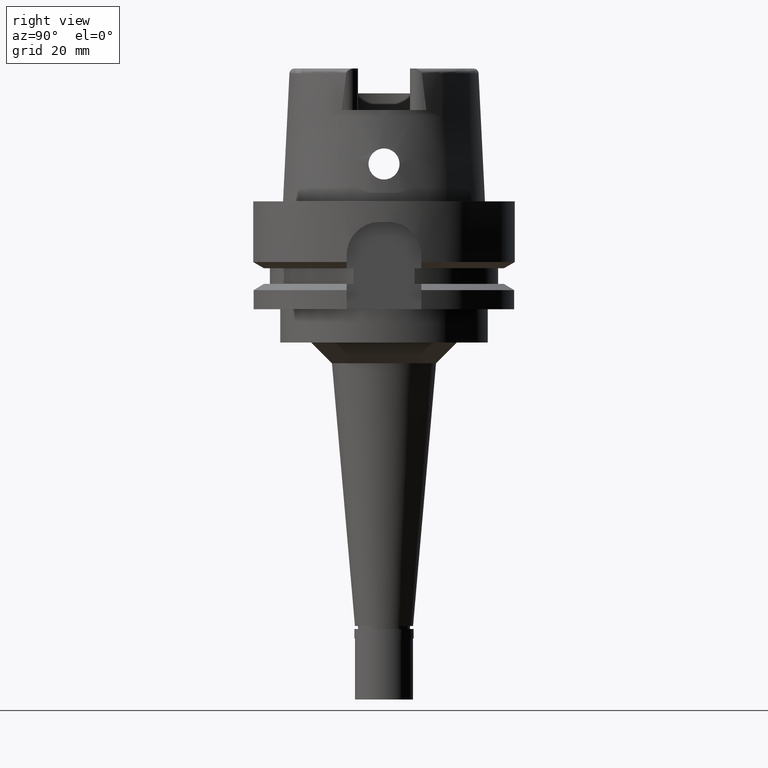
[diagram: clean part render]
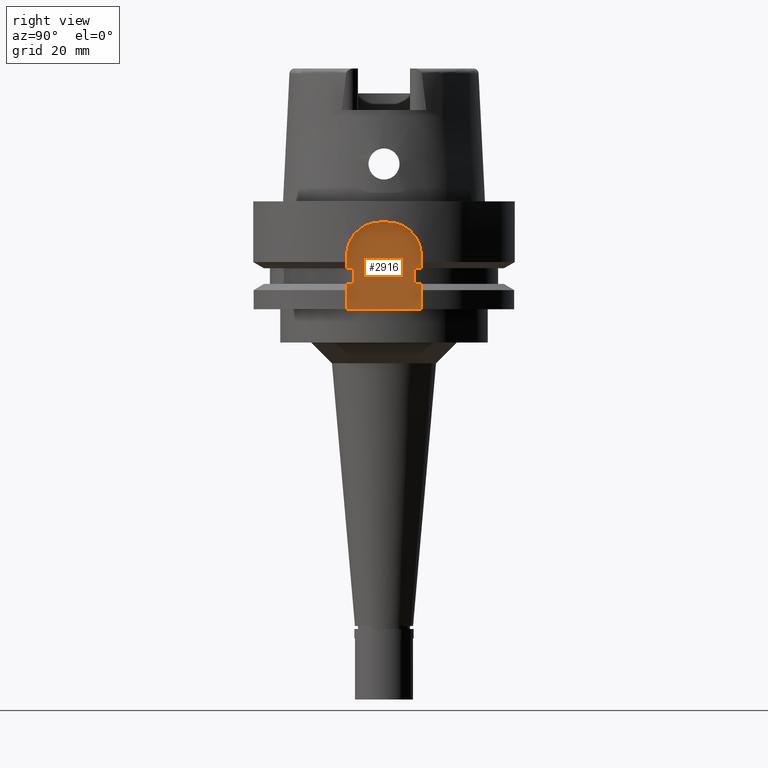
[diagram: same view with one face highlighted and labeled with its STEP entity id]
A machine part, right view. The second image highlights one B-rep face of the part: STEP entity #2916.
In plain terms, the highlighted planar face has unit normal (1, 0, 0).
Its self-contained STEP definition (entity closure, byte-faithful):
#2 = ORIENTED_EDGE ( 'NONE', *, *, #636, .F. ) ;
#70 = VERTEX_POINT ( 'NONE', #728 ) ;
#115 = DIRECTION ( 'NONE',  ( 0.0000000000000000000, 0.0000000000000000000, 1.000000000000000000 ) ) ;
#196 = CARTESIAN_POINT ( 'NONE',  ( 26.50000000000000000, -7.348469228349999938, -19.87500000000000000 ) ) ;
#206 = VECTOR ( 'NONE', #5142, 1000.000000000000000 ) ;
#310 = CARTESIAN_POINT ( 'NONE',  ( 26.50000000000000000, -9.000000000000000000, -26.00000000000000000 ) ) ;
#364 = EDGE_CURVE ( 'NONE', #836, #711, #1304, .T. ) ;
#374 = LINE ( 'NONE', #2117, #1582 ) ;
#375 = LINE ( 'NONE', #4096, #4568 ) ;
#405 = CARTESIAN_POINT ( 'NONE',  ( 26.50000000000000000, -9.000000000000000000, -16.12500000000000000 ) ) ;
#412 = DIRECTION ( 'NONE',  ( 0.0000000000000000000, 1.000000000000000000, 0.0000000000000000000 ) ) ;
#465 = VECTOR ( 'NONE', #4441, 1000.000000000000000 ) ;
#507 = ORIENTED_EDGE ( 'NONE', *, *, #3588, .T. ) ;
#586 = LINE ( 'NONE', #4704, #4815 ) ;
#636 = EDGE_CURVE ( 'NONE', #780, #827, #375, .T. ) ;
#655 = VERTEX_POINT ( 'NONE', #2897 ) ;
#665 = LINE ( 'NONE', #1547, #2389 ) ;
#711 = VERTEX_POINT ( 'NONE', #945 ) ;
#728 = CARTESIAN_POINT ( 'NONE',  ( 26.50000000000000000, 9.000000000000000000, -19.87500000000000000 ) ) ;
#729 = CARTESIAN_POINT ( 'NONE',  ( 26.50000000000000000, 7.348469228349999938, -16.12500000000000000 ) ) ;
#780 = VERTEX_POINT ( 'NONE', #1961 ) ;
#801 = CIRCLE ( 'NONE', #1495, 8.000000000000000000 ) ;
#804 = EDGE_CURVE ( 'NONE', #3467, #3299, #2813, .T. ) ;
#827 = VERTEX_POINT ( 'NONE', #4555 ) ;
#836 = VERTEX_POINT ( 'NONE', #405 ) ;
#854 = CARTESIAN_POINT ( 'NONE',  ( 26.50000000000000000, 9.000000000000000000, -13.00000000000000000 ) ) ;
#861 = ORIENTED_EDGE ( 'NONE', *, *, #3628, .F. ) ;
#945 = CARTESIAN_POINT ( 'NONE',  ( 26.50000000000000000, -7.348469228349999938, -16.12500000000000000 ) ) ;
#1068 = ORIENTED_EDGE ( 'NONE', *, *, #364, .T. ) ;
#1148 = VECTOR ( 'NONE', #1990, 1000.000000000000000 ) ;
#1179 = EDGE_CURVE ( 'NONE', #70, #655, #665, .T. ) ;
#1198 = DIRECTION ( 'NONE',  ( 0.0000000000000000000, 0.0000000000000000000, 1.000000000000000000 ) ) ;
#1239 = EDGE_CURVE ( 'NONE', #1364, #3299, #3629, .T. ) ;
#1268 = VERTEX_POINT ( 'NONE', #310 ) ;
#1301 = CARTESIAN_POINT ( 'NONE',  ( 26.50000000000000000, -9.000000000000000000, -13.00000000000000000 ) ) ;
#1304 = LINE ( 'NONE', #3789, #1321 ) ;
#1321 = VECTOR ( 'NONE', #1722, 1000.000000000000000 ) ;
#1364 = VERTEX_POINT ( 'NONE', #854 ) ;
#1369 = DIRECTION ( 'NONE',  ( 0.0000000000000000000, 0.0000000000000000000, -1.000000000000000000 ) ) ;
#1421 = CARTESIAN_POINT ( 'NONE',  ( 26.50000000000000000, -9.000000000000000000, -26.00000000000000000 ) ) ;
#1462 = ORIENTED_EDGE ( 'NONE', *, *, #1239, .F. ) ;
#1495 = AXIS2_PLACEMENT_3D ( 'NONE', #5124, #5147, #3488 ) ;
#1513 = CARTESIAN_POINT ( 'NONE',  ( 26.50000000000000000, 9.000000000000000000, -13.00000000000000000 ) ) ;
#1547 = CARTESIAN_POINT ( 'NONE',  ( 26.50000000000000000, 9.000000000000000000, -19.87500000000000000 ) ) ;
#1551 = EDGE_CURVE ( 'NONE', #1268, #5326, #2654, .T. ) ;
#1565 = CARTESIAN_POINT ( 'NONE',  ( 26.50000000000000000, 0.0000000000000000000, 0.0000000000000000000 ) ) ;
#1582 = VECTOR ( 'NONE', #1198, 1000.000000000000000 ) ;
#1603 = VECTOR ( 'NONE', #4475, 1000.000000000000000 ) ;
#1617 = FACE_OUTER_BOUND ( 'NONE', #2798, .T. ) ;
#1631 = VERTEX_POINT ( 'NONE', #4867 ) ;
#1638 = DIRECTION ( 'NONE',  ( 0.0000000000000000000, 1.000000000000000000, 0.0000000000000000000 ) ) ;
#1662 = AXIS2_PLACEMENT_3D ( 'NONE', #4612, #5047, #2870 ) ;
#1685 = CARTESIAN_POINT ( 'NONE',  ( 26.50000000000000000, -9.000000000000000000, -26.00000000000000000 ) ) ;
#1722 = DIRECTION ( 'NONE',  ( -2.366280491871000116E-14, 1.000000000000000000, 0.0000000000000000000 ) ) ;
#1790 = AXIS2_PLACEMENT_3D ( 'NONE', #1565, #2741, #2828 ) ;
#1842 = EDGE_CURVE ( 'NONE', #1631, #70, #3020, .T. ) ;
#1961 = CARTESIAN_POINT ( 'NONE',  ( 26.50000000000000000, -1.000000000001000089, -5.000000000000000000 ) ) ;
#1990 = DIRECTION ( 'NONE',  ( -2.366280491871000116E-14, 1.000000000000000000, 0.0000000000000000000 ) ) ;
#2028 = DIRECTION ( 'NONE',  ( 0.0000000000000000000, 0.0000000000000000000, -1.000000000000000000 ) ) ;
#2057 = ORIENTED_EDGE ( 'NONE', *, *, #4276, .F. ) ;
#2117 = CARTESIAN_POINT ( 'NONE',  ( 26.50000000000000000, -9.000000000000000000, -16.12500000000000000 ) ) ;
#2190 = DIRECTION ( 'NONE',  ( 2.366280491871000116E-14, 1.000000000000000000, 0.0000000000000000000 ) ) ;
#2296 = CARTESIAN_POINT ( 'NONE',  ( 26.50000000000000000, 9.000000000000000000, -16.12500000000000000 ) ) ;
#2389 = VECTOR ( 'NONE', #2028, 1000.000000000000000 ) ;
#2443 = ORIENTED_EDGE ( 'NONE', *, *, #1551, .F. ) ;
#2548 = CARTESIAN_POINT ( 'NONE',  ( 26.50000000000000000, 7.348469228349999938, -16.12500000000000000 ) ) ;
#2606 = CARTESIAN_POINT ( 'NONE',  ( 26.50000000000000000, 7.348469228349999938, -19.87500000000000000 ) ) ;
#2654 = LINE ( 'NONE', #1421, #206 ) ;
#2667 = ORIENTED_EDGE ( 'NONE', *, *, #1842, .F. ) ;
#2741 = DIRECTION ( 'NONE',  ( 1.000000000000000000, 0.0000000000000000000, 0.0000000000000000000 ) ) ;
#2798 = EDGE_LOOP ( 'NONE', ( #4423, #2667, #5211, #4658, #1462, #861, #2, #2057, #3765, #1068, #507, #3999, #2443, #5119 ) ) ;
#2813 = LINE ( 'NONE', #729, #1603 ) ;
#2828 = DIRECTION ( 'NONE',  ( 0.0000000000000000000, 1.000000000000000000, 0.0000000000000000000 ) ) ;
#2870 = DIRECTION ( 'NONE',  ( 0.0000000000000000000, -1.000000000000000000, -1.069023342070707372E-13 ) ) ;
#2897 = CARTESIAN_POINT ( 'NONE',  ( 26.50000000000000000, 9.000000000000000000, -26.00000000000000000 ) ) ;
#2916 = ADVANCED_FACE ( 'NONE', ( #1617 ), #5316, .T. ) ;
#3020 = LINE ( 'NONE', #2606, #4927 ) ;
#3076 = VECTOR ( 'NONE', #115, 1000.000000000000000 ) ;
#3271 = LINE ( 'NONE', #4908, #3076 ) ;
#3299 = VERTEX_POINT ( 'NONE', #2296 ) ;
#3395 = CARTESIAN_POINT ( 'NONE',  ( 26.50000000000000000, -9.000000000000000000, -19.87500000000000000 ) ) ;
#3467 = VERTEX_POINT ( 'NONE', #2548 ) ;
#3488 = DIRECTION ( 'NONE',  ( 0.0000000000000000000, -3.146896805639176620E-14, 1.000000000000000000 ) ) ;
#3588 = EDGE_CURVE ( 'NONE', #711, #4944, #586, .T. ) ;
#3628 = EDGE_CURVE ( 'NONE', #827, #1364, #801, .T. ) ;
#3629 = LINE ( 'NONE', #1513, #465 ) ;
#3682 = VERTEX_POINT ( 'NONE', #1301 ) ;
#3755 = LINE ( 'NONE', #1685, #5251 ) ;
#3765 = ORIENTED_EDGE ( 'NONE', *, *, #4243, .F. ) ;
#3789 = CARTESIAN_POINT ( 'NONE',  ( 26.50000000000000000, -9.000000000000000000, -16.12500000000000000 ) ) ;
#3986 = EDGE_CURVE ( 'NONE', #5326, #4944, #4833, .T. ) ;
#3999 = ORIENTED_EDGE ( 'NONE', *, *, #3986, .F. ) ;
#4096 = CARTESIAN_POINT ( 'NONE',  ( 26.50000000000000000, -1.000000000000000000, -5.000000000000000000 ) ) ;
#4243 = EDGE_CURVE ( 'NONE', #836, #3682, #374, .T. ) ;
#4276 = EDGE_CURVE ( 'NONE', #3682, #780, #4278, .T. ) ;
#4278 = CIRCLE ( 'NONE', #1662, 8.000000000000000000 ) ;
#4312 = EDGE_CURVE ( 'NONE', #1268, #655, #3755, .T. ) ;
#4423 = ORIENTED_EDGE ( 'NONE', *, *, #1179, .F. ) ;
#4441 = DIRECTION ( 'NONE',  ( 0.0000000000000000000, 0.0000000000000000000, -1.000000000000000000 ) ) ;
#4475 = DIRECTION ( 'NONE',  ( 2.366280491871000116E-14, 1.000000000000000000, 0.0000000000000000000 ) ) ;
#4555 = CARTESIAN_POINT ( 'NONE',  ( 26.50000000000000000, 0.9999999999999000799, -5.000000000000000000 ) ) ;
#4568 = VECTOR ( 'NONE', #412, 1000.000000000000000 ) ;
#4612 = CARTESIAN_POINT ( 'NONE',  ( 26.50000000000000000, -1.000000000000000000, -13.00000000000000000 ) ) ;
#4658 = ORIENTED_EDGE ( 'NONE', *, *, #804, .T. ) ;
#4704 = CARTESIAN_POINT ( 'NONE',  ( 26.50000000000000000, -7.348469228349999938, -16.12500000000000000 ) ) ;
#4815 = VECTOR ( 'NONE', #1369, 1000.000000000000000 ) ;
#4824 = EDGE_CURVE ( 'NONE', #1631, #3467, #3271, .T. ) ;
#4833 = LINE ( 'NONE', #5335, #1148 ) ;
#4867 = CARTESIAN_POINT ( 'NONE',  ( 26.50000000000000000, 7.348469228349999938, -19.87500000000000000 ) ) ;
#4908 = CARTESIAN_POINT ( 'NONE',  ( 26.50000000000000000, 7.348469228349999938, -19.87500000000000000 ) ) ;
#4927 = VECTOR ( 'NONE', #2190, 1000.000000000000000 ) ;
#4944 = VERTEX_POINT ( 'NONE', #196 ) ;
#5047 = DIRECTION ( 'NONE',  ( -1.000000000000000000, 0.0000000000000000000, 0.0000000000000000000 ) ) ;
#5119 = ORIENTED_EDGE ( 'NONE', *, *, #4312, .T. ) ;
#5124 = CARTESIAN_POINT ( 'NONE',  ( 26.50000000000000000, 1.000000000000000000, -13.00000000000000000 ) ) ;
#5142 = DIRECTION ( 'NONE',  ( 0.0000000000000000000, 0.0000000000000000000, 1.000000000000000000 ) ) ;
#5147 = DIRECTION ( 'NONE',  ( -1.000000000000000000, 0.0000000000000000000, 0.0000000000000000000 ) ) ;
#5211 = ORIENTED_EDGE ( 'NONE', *, *, #4824, .T. ) ;
#5251 = VECTOR ( 'NONE', #1638, 1000.000000000000000 ) ;
#5316 = PLANE ( 'NONE',  #1790 ) ;
#5326 = VERTEX_POINT ( 'NONE', #3395 ) ;
#5335 = CARTESIAN_POINT ( 'NONE',  ( 26.50000000000000000, -9.000000000000000000, -19.87500000000000000 ) ) ;